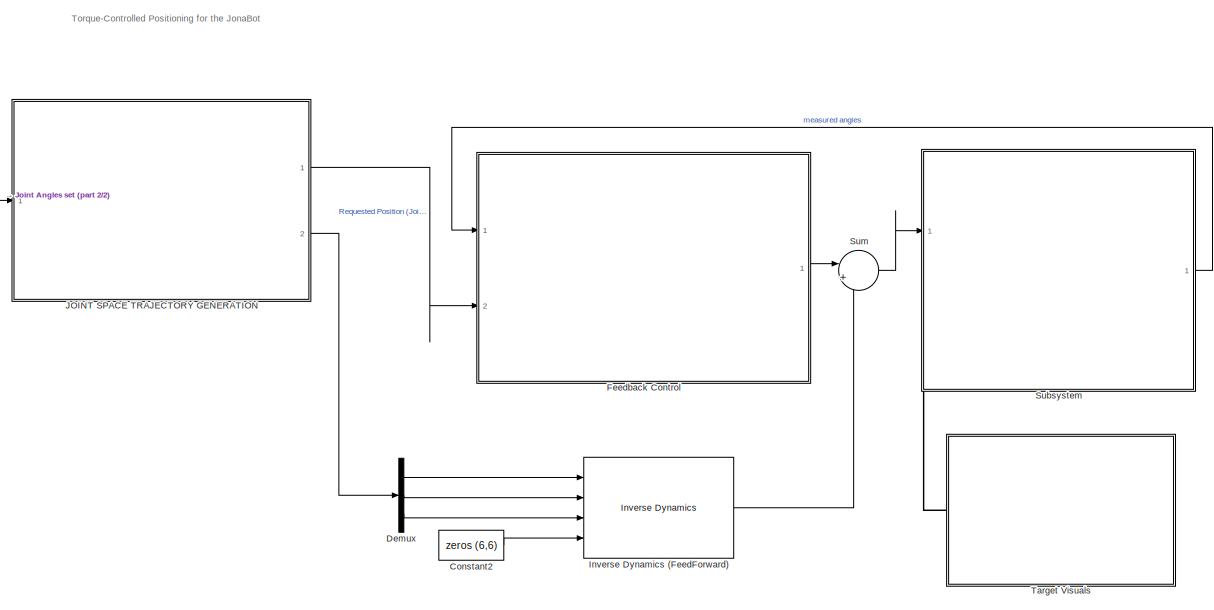
[diagram: root canvas - part 1/2, most of the canvas]
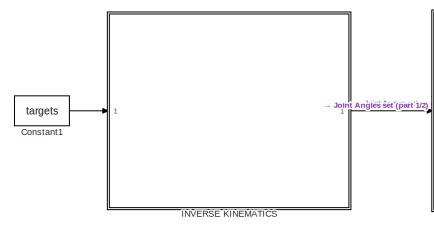
[diagram: root canvas - part 2/2, middle left region]
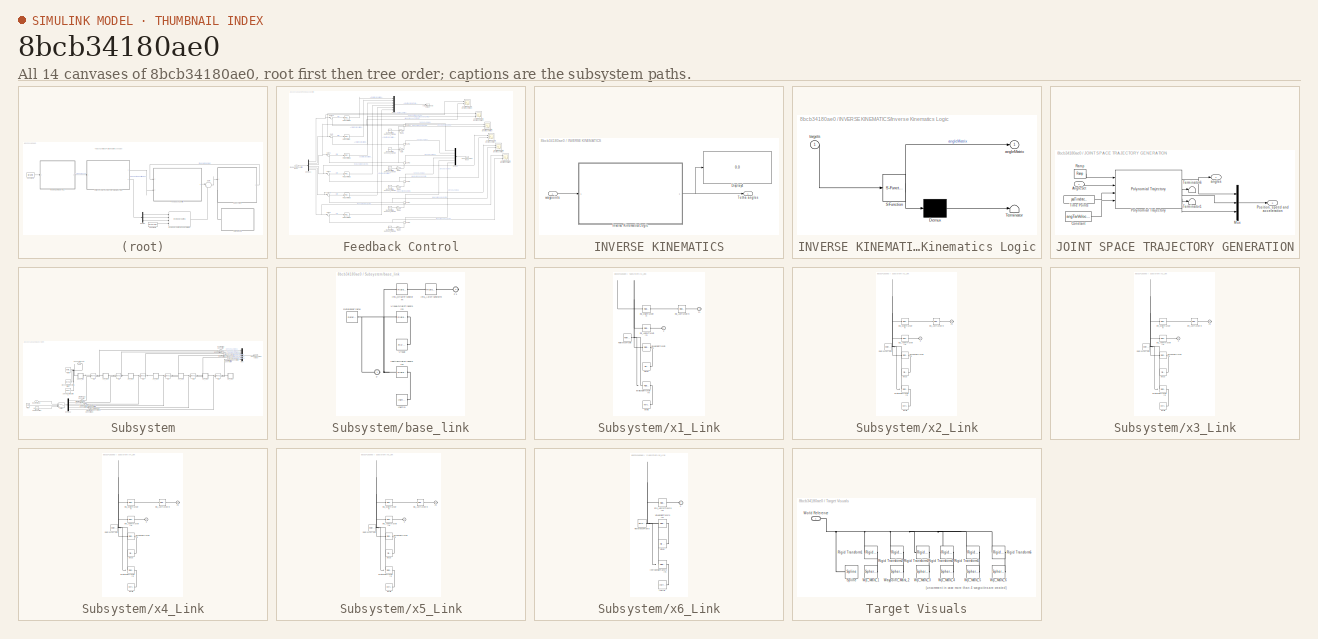
[diagram: thumbnail index - all 14 canvases of the model, root first then tree order]
MODEL slx_8bcb34180ae0
KIND model
CONFIG AbsTol = auto
CONFIG EnableMultiTasking = off
CONFIG FixedStep = auto
CONFIG MaxStep = auto
CONFIG MinStep = auto
CONFIG RelTol = 1e-3
CONFIG SampleTimeConstraint = Unconstrained
CONFIG SolverName = VariableStepAuto
CONFIG StartTime = 0.0
CONFIG StopTime = 10
BLOCK [Constant] Constant1
  Value = targets
BLOCK [Constant] Constant2
  Value = zeros (6,6)
BLOCK [Demux] Demux
  Outputs = 3
  Ports = [1, 3]
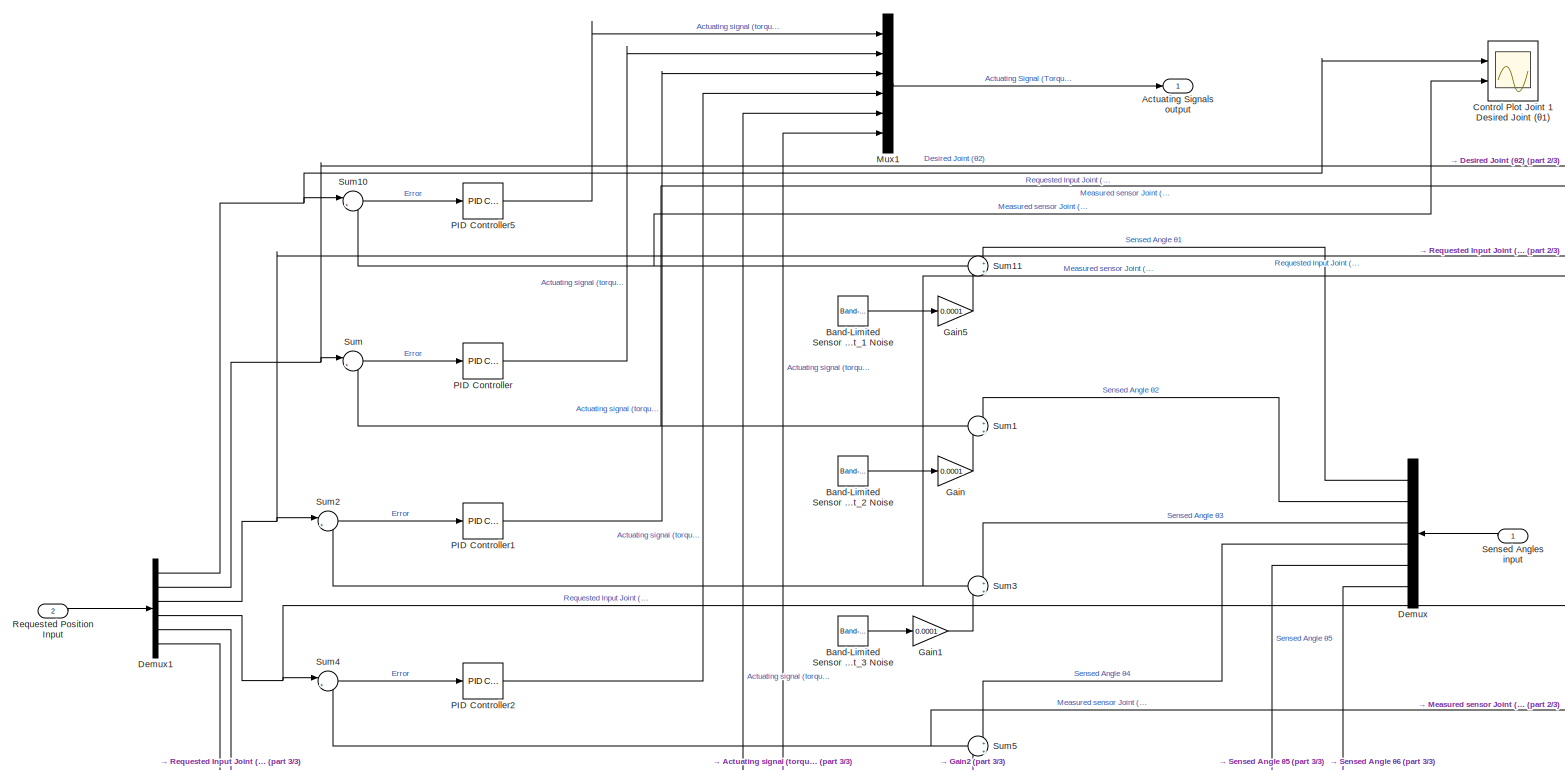
[diagram: Feedback Control - part 1/3, full width, middle band]
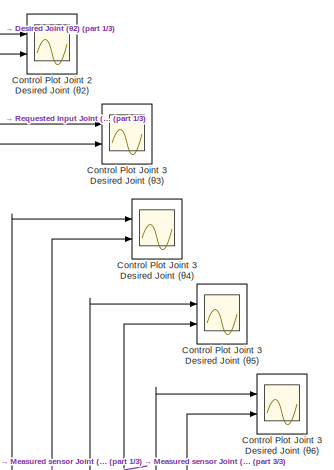
[diagram: Feedback Control - part 2/3, top right region]
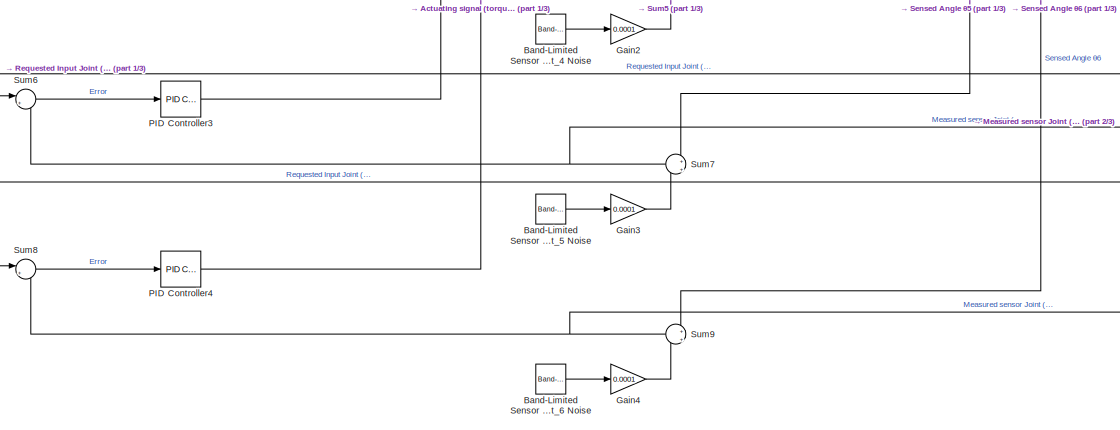
[diagram: Feedback Control - part 3/3, bottom center region]
BLOCK [SubSystem] Feedback Control
  Ports = [2, 1]
  RequestExecContextInheritance = off
BLOCK [Outport] Feedback Control/Actuating Signals output
BLOCK [Reference] Feedback Control/Band-Limited Sensor Joint_1 Noise  REF=simulink/Sources/Band-Limited
White Noise
  Ports = [0, 1]
  SourceBlock = simulink/Sources/Band-Limited\nWhite Noise
  SourceProductBaseCode = SL
  SourceType = Band-Limited White Noise.
BLOCK [Reference] Feedback Control/Band-Limited Sensor Joint_2 Noise  REF=simulink/Sources/Band-Limited
White Noise
  Ports = [0, 1]
  SourceBlock = simulink/Sources/Band-Limited\nWhite Noise
  SourceProductBaseCode = SL
  SourceType = Band-Limited White Noise.
BLOCK [Reference] Feedback Control/Band-Limited Sensor Joint_3 Noise  REF=simulink/Sources/Band-Limited
White Noise
  Ports = [0, 1]
  SourceBlock = simulink/Sources/Band-Limited\nWhite Noise
  SourceProductBaseCode = SL
  SourceType = Band-Limited White Noise.
BLOCK [Reference] Feedback Control/Band-Limited Sensor Joint_4 Noise  REF=simulink/Sources/Band-Limited
White Noise
  Ports = [0, 1]
  SourceBlock = simulink/Sources/Band-Limited\nWhite Noise
  SourceProductBaseCode = SL
  SourceType = Band-Limited White Noise.
BLOCK [Reference] Feedback Control/Band-Limited Sensor Joint_5 Noise  REF=simulink/Sources/Band-Limited
White Noise
  Commented = on
  Ports = [0, 1]
  SourceBlock = simulink/Sources/Band-Limited\nWhite Noise
  SourceProductBaseCode = SL
  SourceType = Band-Limited White Noise.
BLOCK [Reference] Feedback Control/Band-Limited Sensor Joint_6 Noise  REF=simulink/Sources/Band-Limited
White Noise
  Ports = [0, 1]
  SourceBlock = simulink/Sources/Band-Limited\nWhite Noise
  SourceProductBaseCode = SL
  SourceType = Band-Limited White Noise.
BLOCK [Scope] Feedback Control/Control Plot Joint 1 Desired Joint (θ1)
  Floating = off
  NumInputPorts = 2
  Ports = [2]
  ScopeSpecificationString = Simulink.scopes.TimeScopeBlockCfg('CurrentConfiguration', extmgr.ConfigurationSet(extmgr.Configuration('Core','General UI',true,'ShowMainToolbar',false,'ShowStatusbar',false),extmgr.Configuration('Core','Source UI',true),extmgr.Configuration('Sources','WiredSimulink',true,'DataLoggingVariableName','ScopeData1'),extmgr.Configuration('Visuals','Time Domain',true,'SerializedDisplays',{struct('MinYLim...<+1853ch>
BLOCK [Scope] Feedback Control/Control Plot Joint 2 Desired Joint (θ2)
  Floating = off
  NumInputPorts = 2
  Ports = [2]
  ScopeSpecificationString = Simulink.scopes.TimeScopeBlockCfg('CurrentConfiguration', extmgr.ConfigurationSet(extmgr.Configuration('Core','General UI',true,'ShowMainToolbar',false,'ShowStatusbar',false),extmgr.Configuration('Core','Source UI',true),extmgr.Configuration('Sources','WiredSimulink',true),extmgr.Configuration('Visuals','Time Domain',true,'SerializedDisplays',{struct('MinYLimReal','0.00000','MaxYLimReal','1.81013'...<+1829ch>
BLOCK [Scope] Feedback Control/Control Plot Joint 3 Desired Joint (θ3)
  Floating = off
  NumInputPorts = 2
  Ports = [2]
  ScopeSpecificationString = Simulink.scopes.TimeScopeBlockCfg('CurrentConfiguration', extmgr.ConfigurationSet(extmgr.Configuration('Core','General UI',true,'ShowMainToolbar',false,'ShowStatusbar',false),extmgr.Configuration('Core','Source UI',true),extmgr.Configuration('Sources','WiredSimulink',true,'DataLoggingVariableName','ScopeData2'),extmgr.Configuration('Visuals','Time Domain',true,'SerializedDisplays',{struct('MinYLim...<+1882ch>
BLOCK [Scope] Feedback Control/Control Plot Joint 3 Desired Joint (θ4)
  Floating = off
  NumInputPorts = 2
  Ports = [2]
  ScopeSpecificationString = Simulink.scopes.TimeScopeBlockCfg('CurrentConfiguration', extmgr.ConfigurationSet(extmgr.Configuration('Core','General UI',true,'ShowMainToolbar',false,'ShowStatusbar',false),extmgr.Configuration('Core','Source UI',true),extmgr.Configuration('Sources','WiredSimulink',true,'DataLoggingVariableName','ScopeData3'),extmgr.Configuration('Visuals','Time Domain',true,'SerializedDisplays',{struct('MinYLim...<+1882ch>
BLOCK [Scope] Feedback Control/Control Plot Joint 3 Desired Joint (θ5)
  Floating = off
  NumInputPorts = 2
  Ports = [2]
  ScopeSpecificationString = Simulink.scopes.TimeScopeBlockCfg('CurrentConfiguration', extmgr.ConfigurationSet(extmgr.Configuration('Core','General UI',true,'ShowMainToolbar',false,'ShowStatusbar',false),extmgr.Configuration('Core','Source UI',true),extmgr.Configuration('Sources','WiredSimulink',true,'DataLoggingVariableName','ScopeData4'),extmgr.Configuration('Visuals','Time Domain',true,'SerializedDisplays',{struct('MinYLim...<+1882ch>
BLOCK [Scope] Feedback Control/Control Plot Joint 3 Desired Joint (θ6)
  Floating = off
  NumInputPorts = 2
  Ports = [2]
  ScopeSpecificationString = Simulink.scopes.TimeScopeBlockCfg('CurrentConfiguration', extmgr.ConfigurationSet(extmgr.Configuration('Core','General UI',true,'ShowMainToolbar',false,'ShowStatusbar',false),extmgr.Configuration('Core','Source UI',true),extmgr.Configuration('Sources','WiredSimulink',true,'DataLoggingVariableName','ScopeData5'),extmgr.Configuration('Visuals','Time Domain',true,'SerializedDisplays',{struct('MinYLim...<+1905ch>
BLOCK [Demux] Feedback Control/Demux
  Outputs = 6
  Ports = [1, 6]
BLOCK [Demux] Feedback Control/Demux1
  Outputs = 6
  Ports = [1, 6]
BLOCK [Gain] Feedback Control/Gain
  Gain = 0.0001
BLOCK [Gain] Feedback Control/Gain1
  Gain = 0.0001
BLOCK [Gain] Feedback Control/Gain2
  Gain = 0.0001
BLOCK [Gain] Feedback Control/Gain3
  Commented = on
  Gain = 0.0001
BLOCK [Gain] Feedback Control/Gain4
  Gain = 0.0001
BLOCK [Gain] Feedback Control/Gain5
  Gain = 0.0001
BLOCK [Mux] Feedback Control/Mux1
  DisplayOption = bar
  Inputs = 6
  Ports = [6, 1]
BLOCK [Reference] Feedback Control/PID Controller  REF=slpidlib/PID Controller
  Ports = [1, 1]
  SourceBlock = slpidlib/PID Controller
  SourceProductBaseCode = SL
  SourceType = PID 1dof
BLOCK [Reference] Feedback Control/PID Controller1  REF=slpidlib/PID Controller
  Ports = [1, 1]
  SourceBlock = slpidlib/PID Controller
  SourceProductBaseCode = SL
  SourceType = PID 1dof
BLOCK [Reference] Feedback Control/PID Controller2  REF=slpidlib/PID Controller
  Ports = [1, 1]
  SourceBlock = slpidlib/PID Controller
  SourceProductBaseCode = SL
  SourceType = PID 1dof
BLOCK [Reference] Feedback Control/PID Controller3  REF=slpidlib/PID Controller
  Ports = [1, 1]
  SourceBlock = slpidlib/PID Controller
  SourceProductBaseCode = SL
  SourceType = PID 1dof
BLOCK [Reference] Feedback Control/PID Controller4  REF=slpidlib/PID Controller
  Ports = [1, 1]
  SourceBlock = slpidlib/PID Controller
  SourceProductBaseCode = SL
  SourceType = PID 1dof
BLOCK [Reference] Feedback Control/PID Controller5  REF=slpidlib/PID Controller
  Ports = [1, 1]
  SourceBlock = slpidlib/PID Controller
  SourceProductBaseCode = SL
  SourceType = PID 1dof
BLOCK [Inport] Feedback Control/Requested Position Input
  Port = 2
BLOCK [Inport] Feedback Control/Sensed Angles input
BLOCK [Sum] Feedback Control/Sum
  Inputs = |+-
  Ports = [2, 1]
BLOCK [Sum] Feedback Control/Sum1
  Inputs = +|+
  NameLocation = top
  Ports = [2, 1]
BLOCK [Sum] Feedback Control/Sum10
  Inputs = |+-
  Ports = [2, 1]
BLOCK [Sum] Feedback Control/Sum11
  Inputs = +|+
  NameLocation = top
  Ports = [2, 1]
BLOCK [Sum] Feedback Control/Sum2
  Inputs = |+-
  Ports = [2, 1]
BLOCK [Sum] Feedback Control/Sum3
  Inputs = +|+
  NameLocation = top
  Ports = [2, 1]
BLOCK [Sum] Feedback Control/Sum4
  Inputs = |+-
  Ports = [2, 1]
BLOCK [Sum] Feedback Control/Sum5
  Inputs = +|+
  NameLocation = top
  Ports = [2, 1]
BLOCK [Sum] Feedback Control/Sum6
  Inputs = |+-
  Ports = [2, 1]
BLOCK [Sum] Feedback Control/Sum7
  Inputs = +|+
  NameLocation = top
  Ports = [2, 1]
BLOCK [Sum] Feedback Control/Sum8
  Inputs = |+-
  Ports = [2, 1]
BLOCK [Sum] Feedback Control/Sum9
  Inputs = +|+
  NameLocation = top
  Ports = [2, 1]
BLOCK [SubSystem] INVERSE KINEMATICS
  Ports = [1, 1]
  Priority = 2
  RequestExecContextInheritance = off
BLOCK [Display] INVERSE KINEMATICS/Display4
  Decimation = 1
  Ports = [1]
BLOCK [SubSystem] INVERSE KINEMATICS/Inverse Kinematics Logic
  ErrorFcn = Stateflow.Translate.translate
  PermitHierarchicalResolution = ExplicitOnly
  Ports = [1, 1]
  RequestExecContextInheritance = off
  SFBlockType = Chart
  TreatAsAtomicUnit = on
BLOCK [Demux] INVERSE KINEMATICS/Inverse Kinematics Logic/ Demux 
  Outputs = 1
  Ports = [1, 1]
BLOCK [S-Function] INVERSE KINEMATICS/Inverse Kinematics Logic/ SFunction 
  EnableBusSupport = on
  FunctionName = sf_sfun
  PortCounts = [1 2]
  Ports = [1, 2]
  SFcnIsStateOwnerBlock = off
  SFunctionDeploymentMode = off
  Tag = Stateflow S-Function 3
BLOCK [Terminator] INVERSE KINEMATICS/Inverse Kinematics Logic/ Terminator 
BLOCK [Outport] INVERSE KINEMATICS/Inverse Kinematics Logic/angleMatrix
BLOCK [Inport] INVERSE KINEMATICS/Inverse Kinematics Logic/targets
BLOCK [Outport] INVERSE KINEMATICS/Tetha angles
BLOCK [Inport] INVERSE KINEMATICS/waypoints
BLOCK [Reference] Inverse Dynamics (FeedForward)  REF=robotmaniplib/Inverse Dynamics
  Ports = [4, 1]
  SourceBlock = robotmaniplib/Inverse Dynamics
  SourceProductBaseCode = RO
  SourceType = Inverse Dynamics
BLOCK [SubSystem] JOINT SPACE TRAJECTORY GENERATION
  Ports = [1, 2]
  RequestExecContextInheritance = off
BLOCK [Inport] JOINT SPACE TRAJECTORY GENERATION/AngleSet
BLOCK [Constant] JOINT SPACE TRAJECTORY GENERATION/Constant
  Value = angTarVelocity
BLOCK [Mux] JOINT SPACE TRAJECTORY GENERATION/Mux
  DisplayOption = bar
  Inputs = 3
  Ports = [3, 1]
BLOCK [Reference] JOINT SPACE TRAJECTORY GENERATION/Polynomial Trajectory  REF=robotcorelib/Polynomial Trajectory
  Ports = [4, 3]
  Priority = 1
  SourceBlock = robotcorelib/Polynomial Trajectory
  SourceProductBaseCode = NV,RO,RR,UV
  SourceType = robotics.slcore.internal.block.PolyTrajSys
BLOCK [Outport] JOINT SPACE TRAJECTORY GENERATION/Position, speed and acceleration
  Port = 2
BLOCK [Reference] JOINT SPACE TRAJECTORY GENERATION/Ramp  REF=simulink/Sources/Ramp
  Ports = [0, 1]
  SourceBlock = simulink/Sources/Ramp
  SourceProductBaseCode = SL
  SourceType = Ramp
BLOCK [Terminator] JOINT SPACE TRAJECTORY GENERATION/Terminator1
  Commented = on
BLOCK [Terminator] JOINT SPACE TRAJECTORY GENERATION/Terminator6
  Commented = on
BLOCK [Constant] JOINT SPACE TRAJECTORY GENERATION/Time Points
  Value = posTimeIntervals
BLOCK [Outport] JOINT SPACE TRAJECTORY GENERATION/angles
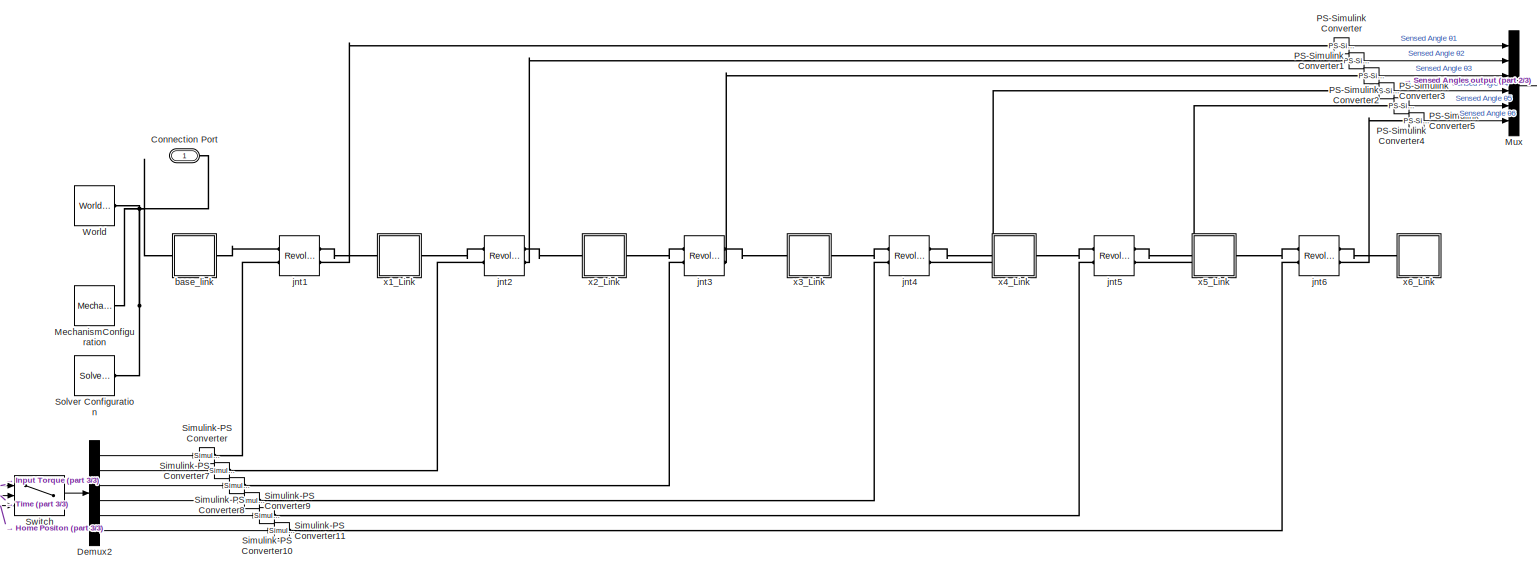
[diagram: Subsystem - part 1/3, most of the canvas]
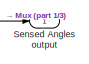
[diagram: Subsystem - part 2/3, top right region]
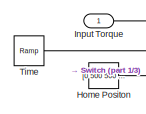
[diagram: Subsystem - part 3/3, bottom left region]
BLOCK [SubSystem] Subsystem
  Ports = [1, 1, 0, 0, 0, 1]
  RequestExecContextInheritance = off
BLOCK [PMIOPort] Subsystem/Connection Port
  Side = Left
BLOCK [Demux] Subsystem/Demux2
  Outputs = 6
  Ports = [1, 6]
BLOCK [Constant] Subsystem/Home Positon
  Value = [0 500 500 0 0 0]
BLOCK [Inport] Subsystem/Input Torque
BLOCK [Reference] Subsystem/MechanismConfiguration  REF=sm_lib/Utilities/Mechanism
Configuration
  Ports = [0, 0, 0, 0, 0, 0, 1]
  SourceBlock = sm_lib/Utilities/Mechanism\nConfiguration
  SourceProductBaseCode = MS
  SourceType = Mechanism\nConfiguration
BLOCK [Mux] Subsystem/Mux
  DisplayOption = bar
  Inputs = 6
  Ports = [6, 1]
BLOCK [Reference] Subsystem/PS-Simulink Converter  REF=nesl_utility/PS-Simulink
Converter
  Ports = [0, 1, 0, 0, 0, 1]
  SourceBlock = nesl_utility/PS-Simulink\nConverter
  SourceProductBaseCode = PW,SS
  SourceType = PS-Simulink\nConverter
BLOCK [Reference] Subsystem/PS-Simulink Converter1  REF=nesl_utility/PS-Simulink
Converter
  Ports = [0, 1, 0, 0, 0, 1]
  SourceBlock = nesl_utility/PS-Simulink\nConverter
  SourceProductBaseCode = PW,SS
  SourceType = PS-Simulink\nConverter
BLOCK [Reference] Subsystem/PS-Simulink Converter2  REF=nesl_utility/PS-Simulink
Converter
  Ports = [0, 1, 0, 0, 0, 1]
  SourceBlock = nesl_utility/PS-Simulink\nConverter
  SourceProductBaseCode = PW,SS
  SourceType = PS-Simulink\nConverter
BLOCK [Reference] Subsystem/PS-Simulink Converter3  REF=nesl_utility/PS-Simulink
Converter
  Ports = [0, 1, 0, 0, 0, 1]
  SourceBlock = nesl_utility/PS-Simulink\nConverter
  SourceProductBaseCode = PW,SS
  SourceType = PS-Simulink\nConverter
BLOCK [Reference] Subsystem/PS-Simulink Converter4  REF=nesl_utility/PS-Simulink
Converter
  Ports = [0, 1, 0, 0, 0, 1]
  SourceBlock = nesl_utility/PS-Simulink\nConverter
  SourceProductBaseCode = PW,SS
  SourceType = PS-Simulink\nConverter
BLOCK [Reference] Subsystem/PS-Simulink Converter5  REF=nesl_utility/PS-Simulink
Converter
  Ports = [0, 1, 0, 0, 0, 1]
  SourceBlock = nesl_utility/PS-Simulink\nConverter
  SourceProductBaseCode = PW,SS
  SourceType = PS-Simulink\nConverter
BLOCK [Outport] Subsystem/Sensed Angles output
BLOCK [Reference] Subsystem/Simulink-PS Converter  REF=nesl_utility/Simulink-PS
Converter
  Ports = [1, 0, 0, 0, 0, 0, 1]
  SourceBlock = nesl_utility/Simulink-PS\nConverter
  SourceProductBaseCode = PW,SS
  SourceType = Simulink-PS\nConverter
BLOCK [Reference] Subsystem/Simulink-PS Converter10  REF=nesl_utility/Simulink-PS
Converter
  Ports = [1, 0, 0, 0, 0, 0, 1]
  SourceBlock = nesl_utility/Simulink-PS\nConverter
  SourceProductBaseCode = PW,SS
  SourceType = Simulink-PS\nConverter
BLOCK [Reference] Subsystem/Simulink-PS Converter11  REF=nesl_utility/Simulink-PS
Converter
  Ports = [1, 0, 0, 0, 0, 0, 1]
  SourceBlock = nesl_utility/Simulink-PS\nConverter
  SourceProductBaseCode = PW,SS
  SourceType = Simulink-PS\nConverter
BLOCK [Reference] Subsystem/Simulink-PS Converter7  REF=nesl_utility/Simulink-PS
Converter
  Ports = [1, 0, 0, 0, 0, 0, 1]
  SourceBlock = nesl_utility/Simulink-PS\nConverter
  SourceProductBaseCode = PW,SS
  SourceType = Simulink-PS\nConverter
BLOCK [Reference] Subsystem/Simulink-PS Converter8  REF=nesl_utility/Simulink-PS
Converter
  Ports = [1, 0, 0, 0, 0, 0, 1]
  SourceBlock = nesl_utility/Simulink-PS\nConverter
  SourceProductBaseCode = PW,SS
  SourceType = Simulink-PS\nConverter
BLOCK [Reference] Subsystem/Simulink-PS Converter9  REF=nesl_utility/Simulink-PS
Converter
  Ports = [1, 0, 0, 0, 0, 0, 1]
  SourceBlock = nesl_utility/Simulink-PS\nConverter
  SourceProductBaseCode = PW,SS
  SourceType = Simulink-PS\nConverter
BLOCK [Reference] Subsystem/Solver Configuration  REF=nesl_utility/Solver
Configuration
  Ports = [0, 0, 0, 0, 0, 0, 1]
  SourceBlock = nesl_utility/Solver\nConfiguration
  SourceProductBaseCode = PW,SS
  SourceType = Solver\nConfiguration
BLOCK [Switch] Subsystem/Switch
  InputSameDT = off
  SaturateOnIntegerOverflow = off
  Threshold = 0.2
BLOCK [Reference] Subsystem/Time  REF=simulink/Sources/Ramp
  Ports = [0, 1]
  SourceBlock = simulink/Sources/Ramp
  SourceProductBaseCode = SL
  SourceType = Ramp
BLOCK [Reference] Subsystem/World  REF=sm_lib/Frames and
Transforms/World Frame
  Ports = [0, 0, 0, 0, 0, 0, 1]
  SourceBlock = sm_lib/Frames and\nTransforms/World Frame
  SourceProductBaseCode = MS
  SourceType = World Frame
BLOCK [SubSystem] Subsystem/base_link
  Ports = [0, 0, 0, 0, 0, 1, 1]
  RequestExecContextInheritance = off
BLOCK [PMIOPort] Subsystem/base_link/F
  Side = Left
BLOCK [PMIOPort] Subsystem/base_link/F1
  Port = 2
  Side = Right
BLOCK [Reference] Subsystem/base_link/Inertia  REF=sm_lib/Body Elements/Inertia
  Ports = [0, 0, 0, 0, 0, 0, 1]
  SourceBlock = sm_lib/Body Elements/Inertia
  SourceProductBaseCode = MS
  SourceType = Inertia
BLOCK [Reference] Subsystem/base_link/InertiaOriginTransform  REF=sm_lib/Frames and
Transforms/Rigid
Transform
  Ports = [0, 0, 0, 0, 0, 1, 1]
  SourceBlock = sm_lib/Frames and\nTransforms/Rigid\nTransform
  SourceProductBaseCode = MS
  SourceType = Rigid\nTransform
BLOCK [Reference] Subsystem/base_link/ReferenceFrame  REF=sm_lib/Frames and
Transforms/Reference
Frame
  Ports = [0, 0, 0, 0, 0, 0, 1]
  SourceBlock = sm_lib/Frames and\nTransforms/Reference\nFrame
  SourceProductBaseCode = MS
  SourceType = Reference\nFrame
BLOCK [Reference] Subsystem/base_link/Visual  REF=sm_lib/Body Elements/File Solid
  Ports = [0, 0, 0, 0, 0, 0, 1]
  SourceBlock = sm_lib/Body Elements/File Solid
  SourceProductBaseCode = MS
  SourceType = File Solid
BLOCK [Reference] Subsystem/base_link/VisualOriginTransform  REF=sm_lib/Frames and
Transforms/Rigid
Transform
  Ports = [0, 0, 0, 0, 0, 1, 1]
  SourceBlock = sm_lib/Frames and\nTransforms/Rigid\nTransform
  SourceProductBaseCode = MS
  SourceType = Rigid\nTransform
BLOCK [Reference] Subsystem/base_link/jnt1_AxisTransform  REF=sm_lib/Frames and
Transforms/Rigid
Transform
  Ports = [0, 0, 0, 0, 0, 1, 1]
  SourceBlock = sm_lib/Frames and\nTransforms/Rigid\nTransform
  SourceProductBaseCode = MS
  SourceType = Rigid\nTransform
BLOCK [Reference] Subsystem/base_link/jnt1_OriginTransform  REF=sm_lib/Frames and
Transforms/Rigid
Transform
  Ports = [0, 0, 0, 0, 0, 1, 1]
  SourceBlock = sm_lib/Frames and\nTransforms/Rigid\nTransform
  SourceProductBaseCode = MS
  SourceType = Rigid\nTransform
BLOCK [Reference] Subsystem/jnt1  REF=sm_lib/Joints/Revolute Joint
  Ports = [0, 0, 0, 0, 0, 2, 2]
  SourceBlock = sm_lib/Joints/Revolute Joint
  SourceProductBaseCode = MS
  SourceType = Revolute Joint
BLOCK [Reference] Subsystem/jnt2  REF=sm_lib/Joints/Revolute Joint
  Ports = [0, 0, 0, 0, 0, 2, 2]
  SourceBlock = sm_lib/Joints/Revolute Joint
  SourceProductBaseCode = MS
  SourceType = Revolute Joint
BLOCK [Reference] Subsystem/jnt3  REF=sm_lib/Joints/Revolute Joint
  Ports = [0, 0, 0, 0, 0, 2, 2]
  SourceBlock = sm_lib/Joints/Revolute Joint
  SourceProductBaseCode = MS
  SourceType = Revolute Joint
BLOCK [Reference] Subsystem/jnt4  REF=sm_lib/Joints/Revolute Joint
  Ports = [0, 0, 0, 0, 0, 2, 2]
  SourceBlock = sm_lib/Joints/Revolute Joint
  SourceProductBaseCode = MS
  SourceType = Revolute Joint
BLOCK [Reference] Subsystem/jnt5  REF=sm_lib/Joints/Revolute Joint
  Ports = [0, 0, 0, 0, 0, 2, 2]
  SourceBlock = sm_lib/Joints/Revolute Joint
  SourceProductBaseCode = MS
  SourceType = Revolute Joint
BLOCK [Reference] Subsystem/jnt6  REF=sm_lib/Joints/Revolute Joint
  Ports = [0, 0, 0, 0, 0, 2, 2]
  SourceBlock = sm_lib/Joints/Revolute Joint
  SourceProductBaseCode = MS
  SourceType = Revolute Joint
BLOCK [SubSystem] Subsystem/x1_Link
  Ports = [0, 0, 0, 0, 0, 1, 1]
  RequestExecContextInheritance = off
BLOCK [PMIOPort] Subsystem/x1_Link/F
  Side = Left
BLOCK [PMIOPort] Subsystem/x1_Link/F1
  Port = 2
  Side = Right
BLOCK [Reference] Subsystem/x1_Link/Inertia  REF=sm_lib/Body Elements/Inertia
  Ports = [0, 0, 0, 0, 0, 0, 1]
  SourceBlock = sm_lib/Body Elements/Inertia
  SourceProductBaseCode = MS
  SourceType = Inertia
BLOCK [Reference] Subsystem/x1_Link/InertiaOriginTransform  REF=sm_lib/Frames and
Transforms/Rigid
Transform
  Ports = [0, 0, 0, 0, 0, 1, 1]
  SourceBlock = sm_lib/Frames and\nTransforms/Rigid\nTransform
  SourceProductBaseCode = MS
  SourceType = Rigid\nTransform
BLOCK [Reference] Subsystem/x1_Link/ReferenceFrame  REF=sm_lib/Frames and
Transforms/Reference
Frame
  Ports = [0, 0, 0, 0, 0, 0, 1]
  SourceBlock = sm_lib/Frames and\nTransforms/Reference\nFrame
  SourceProductBaseCode = MS
  SourceType = Reference\nFrame
BLOCK [Reference] Subsystem/x1_Link/Visual  REF=sm_lib/Body Elements/File Solid
  Ports = [0, 0, 0, 0, 0, 0, 1]
  SourceBlock = sm_lib/Body Elements/File Solid
  SourceProductBaseCode = MS
  SourceType = File Solid
BLOCK [Reference] Subsystem/x1_Link/VisualOriginTransform  REF=sm_lib/Frames and
Transforms/Rigid
Transform
  Ports = [0, 0, 0, 0, 0, 1, 1]
  SourceBlock = sm_lib/Frames and\nTransforms/Rigid\nTransform
  SourceProductBaseCode = MS
  SourceType = Rigid\nTransform
BLOCK [Reference] Subsystem/x1_Link/jnt1_AxisInvTransform  REF=sm_lib/Frames and
Transforms/Rigid
Transform
  Ports = [0, 0, 0, 0, 0, 1, 1]
  SourceBlock = sm_lib/Frames and\nTransforms/Rigid\nTransform
  SourceProductBaseCode = MS
  SourceType = Rigid\nTransform
BLOCK [Reference] Subsystem/x1_Link/jnt2_AxisTransform  REF=sm_lib/Frames and
Transforms/Rigid
Transform
  Ports = [0, 0, 0, 0, 0, 1, 1]
  SourceBlock = sm_lib/Frames and\nTransforms/Rigid\nTransform
  SourceProductBaseCode = MS
  SourceType = Rigid\nTransform
BLOCK [Reference] Subsystem/x1_Link/jnt2_OriginTransform  REF=sm_lib/Frames and
Transforms/Rigid
Transform
  Ports = [0, 0, 0, 0, 0, 1, 1]
  SourceBlock = sm_lib/Frames and\nTransforms/Rigid\nTransform
  SourceProductBaseCode = MS
  SourceType = Rigid\nTransform
BLOCK [SubSystem] Subsystem/x2_Link
  Ports = [0, 0, 0, 0, 0, 1, 1]
  RequestExecContextInheritance = off
BLOCK [PMIOPort] Subsystem/x2_Link/F
  Side = Left
BLOCK [PMIOPort] Subsystem/x2_Link/F1
  Port = 2
  Side = Right
BLOCK [Reference] Subsystem/x2_Link/Inertia  REF=sm_lib/Body Elements/Inertia
  Ports = [0, 0, 0, 0, 0, 0, 1]
  SourceBlock = sm_lib/Body Elements/Inertia
  SourceProductBaseCode = MS
  SourceType = Inertia
BLOCK [Reference] Subsystem/x2_Link/InertiaOriginTransform  REF=sm_lib/Frames and
Transforms/Rigid
Transform
  Ports = [0, 0, 0, 0, 0, 1, 1]
  SourceBlock = sm_lib/Frames and\nTransforms/Rigid\nTransform
  SourceProductBaseCode = MS
  SourceType = Rigid\nTransform
BLOCK [Reference] Subsystem/x2_Link/ReferenceFrame  REF=sm_lib/Frames and
Transforms/Reference
Frame
  Ports = [0, 0, 0, 0, 0, 0, 1]
  SourceBlock = sm_lib/Frames and\nTransforms/Reference\nFrame
  SourceProductBaseCode = MS
  SourceType = Reference\nFrame
BLOCK [Reference] Subsystem/x2_Link/Visual  REF=sm_lib/Body Elements/File Solid
  Ports = [0, 0, 0, 0, 0, 0, 1]
  SourceBlock = sm_lib/Body Elements/File Solid
  SourceProductBaseCode = MS
  SourceType = File Solid
BLOCK [Reference] Subsystem/x2_Link/VisualOriginTransform  REF=sm_lib/Frames and
Transforms/Rigid
Transform
  Ports = [0, 0, 0, 0, 0, 1, 1]
  SourceBlock = sm_lib/Frames and\nTransforms/Rigid\nTransform
  SourceProductBaseCode = MS
  SourceType = Rigid\nTransform
BLOCK [Reference] Subsystem/x2_Link/jnt2_AxisInvTransform  REF=sm_lib/Frames and
Transforms/Rigid
Transform
  Ports = [0, 0, 0, 0, 0, 1, 1]
  SourceBlock = sm_lib/Frames and\nTransforms/Rigid\nTransform
  SourceProductBaseCode = MS
  SourceType = Rigid\nTransform
BLOCK [Reference] Subsystem/x2_Link/jnt3_AxisTransform  REF=sm_lib/Frames and
Transforms/Rigid
Transform
  Ports = [0, 0, 0, 0, 0, 1, 1]
  SourceBlock = sm_lib/Frames and\nTransforms/Rigid\nTransform
  SourceProductBaseCode = MS
  SourceType = Rigid\nTransform
BLOCK [Reference] Subsystem/x2_Link/jnt3_OriginTransform  REF=sm_lib/Frames and
Transforms/Rigid
Transform
  Ports = [0, 0, 0, 0, 0, 1, 1]
  SourceBlock = sm_lib/Frames and\nTransforms/Rigid\nTransform
  SourceProductBaseCode = MS
  SourceType = Rigid\nTransform
BLOCK [SubSystem] Subsystem/x3_Link
  Ports = [0, 0, 0, 0, 0, 1, 1]
  RequestExecContextInheritance = off
BLOCK [PMIOPort] Subsystem/x3_Link/F
  Side = Left
BLOCK [PMIOPort] Subsystem/x3_Link/F1
  Port = 2
  Side = Right
BLOCK [Reference] Subsystem/x3_Link/Inertia  REF=sm_lib/Body Elements/Inertia
  Ports = [0, 0, 0, 0, 0, 0, 1]
  SourceBlock = sm_lib/Body Elements/Inertia
  SourceProductBaseCode = MS
  SourceType = Inertia
BLOCK [Reference] Subsystem/x3_Link/InertiaOriginTransform  REF=sm_lib/Frames and
Transforms/Rigid
Transform
  Ports = [0, 0, 0, 0, 0, 1, 1]
  SourceBlock = sm_lib/Frames and\nTransforms/Rigid\nTransform
  SourceProductBaseCode = MS
  SourceType = Rigid\nTransform
BLOCK [Reference] Subsystem/x3_Link/ReferenceFrame  REF=sm_lib/Frames and
Transforms/Reference
Frame
  Ports = [0, 0, 0, 0, 0, 0, 1]
  SourceBlock = sm_lib/Frames and\nTransforms/Reference\nFrame
  SourceProductBaseCode = MS
  SourceType = Reference\nFrame
BLOCK [Reference] Subsystem/x3_Link/Visual  REF=sm_lib/Body Elements/File Solid
  Ports = [0, 0, 0, 0, 0, 0, 1]
  SourceBlock = sm_lib/Body Elements/File Solid
  SourceProductBaseCode = MS
  SourceType = File Solid
BLOCK [Reference] Subsystem/x3_Link/VisualOriginTransform  REF=sm_lib/Frames and
Transforms/Rigid
Transform
  Ports = [0, 0, 0, 0, 0, 1, 1]
  SourceBlock = sm_lib/Frames and\nTransforms/Rigid\nTransform
  SourceProductBaseCode = MS
  SourceType = Rigid\nTransform
BLOCK [Reference] Subsystem/x3_Link/jnt3_AxisInvTransform  REF=sm_lib/Frames and
Transforms/Rigid
Transform
  Ports = [0, 0, 0, 0, 0, 1, 1]
  SourceBlock = sm_lib/Frames and\nTransforms/Rigid\nTransform
  SourceProductBaseCode = MS
  SourceType = Rigid\nTransform
BLOCK [Reference] Subsystem/x3_Link/jnt4_AxisTransform  REF=sm_lib/Frames and
Transforms/Rigid
Transform
  Ports = [0, 0, 0, 0, 0, 1, 1]
  SourceBlock = sm_lib/Frames and\nTransforms/Rigid\nTransform
  SourceProductBaseCode = MS
  SourceType = Rigid\nTransform
BLOCK [Reference] Subsystem/x3_Link/jnt4_OriginTransform  REF=sm_lib/Frames and
Transforms/Rigid
Transform
  Ports = [0, 0, 0, 0, 0, 1, 1]
  SourceBlock = sm_lib/Frames and\nTransforms/Rigid\nTransform
  SourceProductBaseCode = MS
  SourceType = Rigid\nTransform
BLOCK [SubSystem] Subsystem/x4_Link
  Ports = [0, 0, 0, 0, 0, 1, 1]
  RequestExecContextInheritance = off
BLOCK [PMIOPort] Subsystem/x4_Link/F
  Side = Left
BLOCK [PMIOPort] Subsystem/x4_Link/F1
  Port = 2
  Side = Right
BLOCK [Reference] Subsystem/x4_Link/Inertia  REF=sm_lib/Body Elements/Inertia
  Ports = [0, 0, 0, 0, 0, 0, 1]
  SourceBlock = sm_lib/Body Elements/Inertia
  SourceProductBaseCode = MS
  SourceType = Inertia
BLOCK [Reference] Subsystem/x4_Link/InertiaOriginTransform  REF=sm_lib/Frames and
Transforms/Rigid
Transform
  Ports = [0, 0, 0, 0, 0, 1, 1]
  SourceBlock = sm_lib/Frames and\nTransforms/Rigid\nTransform
  SourceProductBaseCode = MS
  SourceType = Rigid\nTransform
BLOCK [Reference] Subsystem/x4_Link/ReferenceFrame  REF=sm_lib/Frames and
Transforms/Reference
Frame
  Ports = [0, 0, 0, 0, 0, 0, 1]
  SourceBlock = sm_lib/Frames and\nTransforms/Reference\nFrame
  SourceProductBaseCode = MS
  SourceType = Reference\nFrame
BLOCK [Reference] Subsystem/x4_Link/Visual  REF=sm_lib/Body Elements/File Solid
  Ports = [0, 0, 0, 0, 0, 0, 1]
  SourceBlock = sm_lib/Body Elements/File Solid
  SourceProductBaseCode = MS
  SourceType = File Solid
BLOCK [Reference] Subsystem/x4_Link/VisualOriginTransform  REF=sm_lib/Frames and
Transforms/Rigid
Transform
  Ports = [0, 0, 0, 0, 0, 1, 1]
  SourceBlock = sm_lib/Frames and\nTransforms/Rigid\nTransform
  SourceProductBaseCode = MS
  SourceType = Rigid\nTransform
BLOCK [Reference] Subsystem/x4_Link/jnt4_AxisInvTransform  REF=sm_lib/Frames and
Transforms/Rigid
Transform
  Ports = [0, 0, 0, 0, 0, 1, 1]
  SourceBlock = sm_lib/Frames and\nTransforms/Rigid\nTransform
  SourceProductBaseCode = MS
  SourceType = Rigid\nTransform
BLOCK [Reference] Subsystem/x4_Link/jnt5_AxisTransform  REF=sm_lib/Frames and
Transforms/Rigid
Transform
  Ports = [0, 0, 0, 0, 0, 1, 1]
  SourceBlock = sm_lib/Frames and\nTransforms/Rigid\nTransform
  SourceProductBaseCode = MS
  SourceType = Rigid\nTransform
BLOCK [Reference] Subsystem/x4_Link/jnt5_OriginTransform  REF=sm_lib/Frames and
Transforms/Rigid
Transform
  Ports = [0, 0, 0, 0, 0, 1, 1]
  SourceBlock = sm_lib/Frames and\nTransforms/Rigid\nTransform
  SourceProductBaseCode = MS
  SourceType = Rigid\nTransform
BLOCK [SubSystem] Subsystem/x5_Link
  Ports = [0, 0, 0, 0, 0, 1, 1]
  RequestExecContextInheritance = off
BLOCK [PMIOPort] Subsystem/x5_Link/F
  Side = Left
BLOCK [PMIOPort] Subsystem/x5_Link/F1
  Port = 2
  Side = Right
BLOCK [Reference] Subsystem/x5_Link/Inertia  REF=sm_lib/Body Elements/Inertia
  Ports = [0, 0, 0, 0, 0, 0, 1]
  SourceBlock = sm_lib/Body Elements/Inertia
  SourceProductBaseCode = MS
  SourceType = Inertia
BLOCK [Reference] Subsystem/x5_Link/InertiaOriginTransform  REF=sm_lib/Frames and
Transforms/Rigid
Transform
  Ports = [0, 0, 0, 0, 0, 1, 1]
  SourceBlock = sm_lib/Frames and\nTransforms/Rigid\nTransform
  SourceProductBaseCode = MS
  SourceType = Rigid\nTransform
BLOCK [Reference] Subsystem/x5_Link/ReferenceFrame  REF=sm_lib/Frames and
Transforms/Reference
Frame
  Ports = [0, 0, 0, 0, 0, 0, 1]
  SourceBlock = sm_lib/Frames and\nTransforms/Reference\nFrame
  SourceProductBaseCode = MS
  SourceType = Reference\nFrame
BLOCK [Reference] Subsystem/x5_Link/Visual  REF=sm_lib/Body Elements/File Solid
  Ports = [0, 0, 0, 0, 0, 0, 1]
  SourceBlock = sm_lib/Body Elements/File Solid
  SourceProductBaseCode = MS
  SourceType = File Solid
BLOCK [Reference] Subsystem/x5_Link/VisualOriginTransform  REF=sm_lib/Frames and
Transforms/Rigid
Transform
  Ports = [0, 0, 0, 0, 0, 1, 1]
  SourceBlock = sm_lib/Frames and\nTransforms/Rigid\nTransform
  SourceProductBaseCode = MS
  SourceType = Rigid\nTransform
BLOCK [Reference] Subsystem/x5_Link/jnt5_AxisInvTransform  REF=sm_lib/Frames and
Transforms/Rigid
Transform
  Ports = [0, 0, 0, 0, 0, 1, 1]
  SourceBlock = sm_lib/Frames and\nTransforms/Rigid\nTransform
  SourceProductBaseCode = MS
  SourceType = Rigid\nTransform
BLOCK [Reference] Subsystem/x5_Link/jnt6_AxisTransform  REF=sm_lib/Frames and
Transforms/Rigid
Transform
  Ports = [0, 0, 0, 0, 0, 1, 1]
  SourceBlock = sm_lib/Frames and\nTransforms/Rigid\nTransform
  SourceProductBaseCode = MS
  SourceType = Rigid\nTransform
BLOCK [Reference] Subsystem/x5_Link/jnt6_OriginTransform  REF=sm_lib/Frames and
Transforms/Rigid
Transform
  Ports = [0, 0, 0, 0, 0, 1, 1]
  SourceBlock = sm_lib/Frames and\nTransforms/Rigid\nTransform
  SourceProductBaseCode = MS
  SourceType = Rigid\nTransform
BLOCK [SubSystem] Subsystem/x6_Link
  Ports = [0, 0, 0, 0, 0, 1]
  RequestExecContextInheritance = off
BLOCK [PMIOPort] Subsystem/x6_Link/F
  Side = Left
BLOCK [Reference] Subsystem/x6_Link/Inertia  REF=sm_lib/Body Elements/Inertia
  Ports = [0, 0, 0, 0, 0, 0, 1]
  SourceBlock = sm_lib/Body Elements/Inertia
  SourceProductBaseCode = MS
  SourceType = Inertia
BLOCK [Reference] Subsystem/x6_Link/InertiaOriginTransform  REF=sm_lib/Frames and
Transforms/Rigid
Transform
  Ports = [0, 0, 0, 0, 0, 1, 1]
  SourceBlock = sm_lib/Frames and\nTransforms/Rigid\nTransform
  SourceProductBaseCode = MS
  SourceType = Rigid\nTransform
BLOCK [Reference] Subsystem/x6_Link/ReferenceFrame  REF=sm_lib/Frames and
Transforms/Reference
Frame
  Ports = [0, 0, 0, 0, 0, 0, 1]
  SourceBlock = sm_lib/Frames and\nTransforms/Reference\nFrame
  SourceProductBaseCode = MS
  SourceType = Reference\nFrame
BLOCK [Reference] Subsystem/x6_Link/Visual  REF=sm_lib/Body Elements/File Solid
  Ports = [0, 0, 0, 0, 0, 0, 1]
  SourceBlock = sm_lib/Body Elements/File Solid
  SourceProductBaseCode = MS
  SourceType = File Solid
BLOCK [Reference] Subsystem/x6_Link/VisualOriginTransform  REF=sm_lib/Frames and
Transforms/Rigid
Transform
  Ports = [0, 0, 0, 0, 0, 1, 1]
  SourceBlock = sm_lib/Frames and\nTransforms/Rigid\nTransform
  SourceProductBaseCode = MS
  SourceType = Rigid\nTransform
BLOCK [Reference] Subsystem/x6_Link/jnt6_AxisInvTransform  REF=sm_lib/Frames and
Transforms/Rigid
Transform
  Ports = [0, 0, 0, 0, 0, 1, 1]
  SourceBlock = sm_lib/Frames and\nTransforms/Rigid\nTransform
  SourceProductBaseCode = MS
  SourceType = Rigid\nTransform
BLOCK [Sum] Sum
  Inputs = |++
  Ports = [2, 1]
BLOCK [SubSystem] Target Visuals
  Ports = [0, 0, 0, 0, 0, 1]
  RequestExecContextInheritance = off
BLOCK [Reference] Target Visuals/Rigid Transform1  REF=sm_lib/Frames and
Transforms/Rigid
Transform
  Ports = [0, 0, 0, 0, 0, 1, 1]
  SourceBlock = sm_lib/Frames and\nTransforms/Rigid\nTransform
  SourceProductBaseCode = MS
  SourceType = Rigid\nTransform
BLOCK [Reference] Target Visuals/Rigid Transform2  REF=sm_lib/Frames and
Transforms/Rigid
Transform
  Ports = [0, 0, 0, 0, 0, 1, 1]
  SourceBlock = sm_lib/Frames and\nTransforms/Rigid\nTransform
  SourceProductBaseCode = MS
  SourceType = Rigid\nTransform
BLOCK [Reference] Target Visuals/Rigid Transform3  REF=sm_lib/Frames and
Transforms/Rigid
Transform
  Commented = on
  Ports = [0, 0, 0, 0, 0, 1, 1]
  SourceBlock = sm_lib/Frames and\nTransforms/Rigid\nTransform
  SourceProductBaseCode = MS
  SourceType = Rigid\nTransform
BLOCK [Reference] Target Visuals/Rigid Transform4  REF=sm_lib/Frames and
Transforms/Rigid
Transform
  Commented = on
  Ports = [0, 0, 0, 0, 0, 1, 1]
  SourceBlock = sm_lib/Frames and\nTransforms/Rigid\nTransform
  SourceProductBaseCode = MS
  SourceType = Rigid\nTransform
BLOCK [Reference] Target Visuals/Rigid Transform5  REF=sm_lib/Frames and
Transforms/Rigid
Transform
  Commented = on
  Ports = [0, 0, 0, 0, 0, 1, 1]
  SourceBlock = sm_lib/Frames and\nTransforms/Rigid\nTransform
  SourceProductBaseCode = MS
  SourceType = Rigid\nTransform
BLOCK [Reference] Target Visuals/Rigid Transform6  REF=sm_lib/Frames and
Transforms/Rigid
Transform
  Commented = on
  Ports = [0, 0, 0, 0, 0, 1, 1]
  SourceBlock = sm_lib/Frames and\nTransforms/Rigid\nTransform
  SourceProductBaseCode = MS
  SourceType = Rigid\nTransform
BLOCK [Reference] Target Visuals/Spline  REF=sm_lib/Curves and Surfaces/Spline
  Commented = on
  Ports = [0, 0, 0, 0, 0, 1, 1]
  SourceBlock = sm_lib/Curves and Surfaces/Spline
  SourceProductBaseCode = MS
  SourceType = Spline
BLOCK [Reference] Target Visuals/Waypoint_Mark_2  REF=sm_lib/Body Elements/Spherical Solid
  Ports = [0, 0, 0, 0, 0, 0, 1]
  SourceBlock = sm_lib/Body Elements/Spherical Solid
  SourceProductBaseCode = MS
  SourceType = Spherical Solid
BLOCK [PMIOPort] Target Visuals/World Reference
  Side = Left
BLOCK [Reference] Target Visuals/Wp_Mark_1  REF=sm_lib/Body Elements/Spherical Solid
  Ports = [0, 0, 0, 0, 0, 0, 1]
  SourceBlock = sm_lib/Body Elements/Spherical Solid
  SourceProductBaseCode = MS
  SourceType = Spherical Solid
BLOCK [Reference] Target Visuals/Wp_Mark_3  REF=sm_lib/Body Elements/Spherical Solid
  Commented = on
  Ports = [0, 0, 0, 0, 0, 0, 1]
  SourceBlock = sm_lib/Body Elements/Spherical Solid
  SourceProductBaseCode = MS
  SourceType = Spherical Solid
BLOCK [Reference] Target Visuals/Wp_Mark_4  REF=sm_lib/Body Elements/Spherical Solid
  Commented = on
  Ports = [0, 0, 0, 0, 0, 0, 1]
  SourceBlock = sm_lib/Body Elements/Spherical Solid
  SourceProductBaseCode = MS
  SourceType = Spherical Solid
BLOCK [Reference] Target Visuals/Wp_Mark_5  REF=sm_lib/Body Elements/Spherical Solid
  Commented = on
  Ports = [0, 0, 0, 0, 0, 0, 1]
  SourceBlock = sm_lib/Body Elements/Spherical Solid
  SourceProductBaseCode = MS
  SourceType = Spherical Solid
BLOCK [Reference] Target Visuals/Wp_Mark_6  REF=sm_lib/Body Elements/Spherical Solid
  Commented = on
  Ports = [0, 0, 0, 0, 0, 0, 1]
  SourceBlock = sm_lib/Body Elements/Spherical Solid
  SourceProductBaseCode = MS
  SourceType = Spherical Solid
ANNOTATION (root): Torque-Controlled Positioning for the JonaBot
ANNOTATION Target Visuals: (uncomment in case more than 4 waypoitns are created)
LINE Constant1:1 -> INVERSE KINEMATICS:1
LINE Constant2:1 -> Inverse Dynamics (FeedForward):4
LINE Demux:1 -> Inverse Dynamics (FeedForward):1
LINE Demux:2 -> Inverse Dynamics (FeedForward):2
LINE Demux:3 -> Inverse Dynamics (FeedForward):3
LINE Feedback Control/Band-Limited Sensor Joint_1 Noise:1 -> Feedback Control/Gain5:1
LINE Feedback Control/Band-Limited Sensor Joint_2 Noise:1 -> Feedback Control/Gain:1
LINE Feedback Control/Band-Limited Sensor Joint_3 Noise:1 -> Feedback Control/Gain1:1
LINE Feedback Control/Band-Limited Sensor Joint_4 Noise:1 -> Feedback Control/Gain2:1
LINE Feedback Control/Band-Limited Sensor Joint_5 Noise:1 -> Feedback Control/Gain3:1
LINE Feedback Control/Band-Limited Sensor Joint_6 Noise:1 -> Feedback Control/Gain4:1
NET Feedback Control/Demux1:1 -> Feedback Control/Control Plot Joint 1 Desired Joint (θ1):1, Feedback Control/Sum10:1
NET Feedback Control/Demux1:2 -> Feedback Control/Control Plot Joint 2 Desired Joint (θ2):1, Feedback Control/Sum:1
NET Feedback Control/Demux1:3 -> Feedback Control/Control Plot Joint 3 Desired Joint (θ3):1, Feedback Control/Sum2:1
NET Feedback Control/Demux1:4 -> Feedback Control/Control Plot Joint 3 Desired Joint (θ4):1, Feedback Control/Sum4:1
NET Feedback Control/Demux1:5 -> Feedback Control/Control Plot Joint 3 Desired Joint (θ5):1, Feedback Control/Sum6:1
NET Feedback Control/Demux1:6 -> Feedback Control/Control Plot Joint 3 Desired Joint (θ6):1, Feedback Control/Sum8:1
LINE Feedback Control/Demux:1 -> Feedback Control/Sum11:1
LINE Feedback Control/Demux:2 -> Feedback Control/Sum1:1
LINE Feedback Control/Demux:3 -> Feedback Control/Sum3:1
LINE Feedback Control/Demux:4 -> Feedback Control/Sum5:1
LINE Feedback Control/Demux:5 -> Feedback Control/Sum7:1
LINE Feedback Control/Demux:6 -> Feedback Control/Sum9:1
LINE Feedback Control/Gain1:1 -> Feedback Control/Sum3:2
LINE Feedback Control/Gain2:1 -> Feedback Control/Sum5:2
LINE Feedback Control/Gain3:1 -> Feedback Control/Sum7:2
LINE Feedback Control/Gain4:1 -> Feedback Control/Sum9:2
LINE Feedback Control/Gain5:1 -> Feedback Control/Sum11:2
LINE Feedback Control/Gain:1 -> Feedback Control/Sum1:2
LINE Feedback Control/Mux1:1 -> Feedback Control/Actuating Signals output:1
LINE Feedback Control/PID Controller1:1 -> Feedback Control/Mux1:3
LINE Feedback Control/PID Controller2:1 -> Feedback Control/Mux1:4
LINE Feedback Control/PID Controller3:1 -> Feedback Control/Mux1:5
LINE Feedback Control/PID Controller4:1 -> Feedback Control/Mux1:6
LINE Feedback Control/PID Controller5:1 -> Feedback Control/Mux1:1
LINE Feedback Control/PID Controller:1 -> Feedback Control/Mux1:2
LINE Feedback Control/Requested Position Input:1 -> Feedback Control/Demux1:1
LINE Feedback Control/Sensed Angles input:1 -> Feedback Control/Demux:1
LINE Feedback Control/Sum10:1 -> Feedback Control/PID Controller5:1
NET Feedback Control/Sum11:1 -> Feedback Control/Control Plot Joint 1 Desired Joint (θ1):2, Feedback Control/Sum10:2
NET Feedback Control/Sum1:1 -> Feedback Control/Control Plot Joint 2 Desired Joint (θ2):2, Feedback Control/Sum:2
LINE Feedback Control/Sum2:1 -> Feedback Control/PID Controller1:1
NET Feedback Control/Sum3:1 -> Feedback Control/Control Plot Joint 3 Desired Joint (θ3):2, Feedback Control/Sum2:2
LINE Feedback Control/Sum4:1 -> Feedback Control/PID Controller2:1
NET Feedback Control/Sum5:1 -> Feedback Control/Control Plot Joint 3 Desired Joint (θ4):2, Feedback Control/Sum4:2
LINE Feedback Control/Sum6:1 -> Feedback Control/PID Controller3:1
NET Feedback Control/Sum7:1 -> Feedback Control/Control Plot Joint 3 Desired Joint (θ5):2, Feedback Control/Sum6:2
LINE Feedback Control/Sum8:1 -> Feedback Control/PID Controller4:1
NET Feedback Control/Sum9:1 -> Feedback Control/Control Plot Joint 3 Desired Joint (θ6):2, Feedback Control/Sum8:2
LINE Feedback Control/Sum:1 -> Feedback Control/PID Controller:1
LINE Feedback Control:1 -> Sum:1
NET INVERSE KINEMATICS/Inverse Kinematics Logic:1 -> INVERSE KINEMATICS/Display4:1, INVERSE KINEMATICS/Tetha angles:1
LINE INVERSE KINEMATICS/waypoints:1 -> INVERSE KINEMATICS/Inverse Kinematics Logic:1
LINE INVERSE KINEMATICS:1 -> JOINT SPACE TRAJECTORY GENERATION:1
LINE Inverse Dynamics (FeedForward):1 -> Sum:2
LINE JOINT SPACE TRAJECTORY GENERATION/AngleSet:1 -> JOINT SPACE TRAJECTORY GENERATION/Polynomial Trajectory:2
LINE JOINT SPACE TRAJECTORY GENERATION/Constant:1 -> JOINT SPACE TRAJECTORY GENERATION/Polynomial Trajectory:4
LINE JOINT SPACE TRAJECTORY GENERATION/Mux:1 -> JOINT SPACE TRAJECTORY GENERATION/Position, speed and acceleration:1
NET JOINT SPACE TRAJECTORY GENERATION/Polynomial Trajectory:1 -> JOINT SPACE TRAJECTORY GENERATION/Mux:1, JOINT SPACE TRAJECTORY GENERATION/angles:1
NET JOINT SPACE TRAJECTORY GENERATION/Polynomial Trajectory:2 -> JOINT SPACE TRAJECTORY GENERATION/Mux:2, JOINT SPACE TRAJECTORY GENERATION/Terminator6:1
NET JOINT SPACE TRAJECTORY GENERATION/Polynomial Trajectory:3 -> JOINT SPACE TRAJECTORY GENERATION/Mux:3, JOINT SPACE TRAJECTORY GENERATION/Terminator1:1
LINE JOINT SPACE TRAJECTORY GENERATION/Ramp:1 -> JOINT SPACE TRAJECTORY GENERATION/Polynomial Trajectory:1
LINE JOINT SPACE TRAJECTORY GENERATION/Time Points:1 -> JOINT SPACE TRAJECTORY GENERATION/Polynomial Trajectory:3
LINE JOINT SPACE TRAJECTORY GENERATION:1 -> Feedback Control:2
LINE JOINT SPACE TRAJECTORY GENERATION:2 -> Demux:1
LINE Subsystem/Demux2:1 -> Subsystem/Simulink-PS Converter:1
LINE Subsystem/Demux2:2 -> Subsystem/Simulink-PS Converter7:1
LINE Subsystem/Demux2:3 -> Subsystem/Simulink-PS Converter8:1
LINE Subsystem/Demux2:4 -> Subsystem/Simulink-PS Converter9:1
LINE Subsystem/Demux2:5 -> Subsystem/Simulink-PS Converter10:1
LINE Subsystem/Demux2:6 -> Subsystem/Simulink-PS Converter11:1
LINE Subsystem/Home Positon:1 -> Subsystem/Switch:3
LINE Subsystem/Input Torque:1 -> Subsystem/Switch:1
LINE Subsystem/Mux:1 -> Subsystem/Sensed Angles output:1
LINE Subsystem/PS-Simulink Converter1:1 -> Subsystem/Mux:2
LINE Subsystem/PS-Simulink Converter2:1 -> Subsystem/Mux:3
LINE Subsystem/PS-Simulink Converter3:1 -> Subsystem/Mux:4
LINE Subsystem/PS-Simulink Converter4:1 -> Subsystem/Mux:5
LINE Subsystem/PS-Simulink Converter5:1 -> Subsystem/Mux:6
LINE Subsystem/PS-Simulink Converter:1 -> Subsystem/Mux:1
LINE Subsystem/Switch:1 -> Subsystem/Demux2:1
LINE Subsystem/Time:1 -> Subsystem/Switch:2
LINE Subsystem:1 -> Feedback Control:1
LINE Sum:1 -> Subsystem:1
PNET net1: Subsystem/Connection Port:RConn1 -- Subsystem/MechanismConfiguration:RConn1 -- Subsystem/Solver Configuration:RConn1 -- Subsystem/World:RConn1 -- Subsystem/base_link:LConn1
PLINE Subsystem/PS-Simulink Converter1:LConn1 -- Subsystem/jnt2:RConn2
PLINE Subsystem/PS-Simulink Converter2:LConn1 -- Subsystem/jnt3:RConn2
PLINE Subsystem/PS-Simulink Converter3:LConn1 -- Subsystem/jnt4:RConn2
PLINE Subsystem/PS-Simulink Converter4:LConn1 -- Subsystem/jnt5:RConn2
PLINE Subsystem/PS-Simulink Converter5:LConn1 -- Subsystem/jnt6:RConn2
PLINE Subsystem/PS-Simulink Converter:LConn1 -- Subsystem/jnt1:RConn2
PLINE Subsystem/Simulink-PS Converter10:RConn1 -- Subsystem/jnt5:LConn2
PLINE Subsystem/Simulink-PS Converter11:RConn1 -- Subsystem/jnt6:LConn2
PLINE Subsystem/Simulink-PS Converter7:RConn1 -- Subsystem/jnt2:LConn2
PLINE Subsystem/Simulink-PS Converter8:RConn1 -- Subsystem/jnt3:LConn2
PLINE Subsystem/Simulink-PS Converter9:RConn1 -- Subsystem/jnt4:LConn2
PLINE Subsystem/Simulink-PS Converter:RConn1 -- Subsystem/jnt1:LConn2
PLINE Subsystem/base_link/F1:RConn1 -- Subsystem/base_link/jnt1_AxisTransform:RConn1
PNET net2: Subsystem/base_link/F:RConn1 -- Subsystem/base_link/InertiaOriginTransform:LConn1 -- Subsystem/base_link/ReferenceFrame:RConn1 -- Subsystem/base_link/VisualOriginTransform:LConn1 -- Subsystem/base_link/jnt1_OriginTransform:LConn1
PLINE Subsystem/base_link/Inertia:RConn1 -- Subsystem/base_link/InertiaOriginTransform:RConn1
PLINE Subsystem/base_link/Visual:RConn1 -- Subsystem/base_link/VisualOriginTransform:RConn1
PLINE Subsystem/base_link/jnt1_AxisTransform:LConn1 -- Subsystem/base_link/jnt1_OriginTransform:RConn1
PLINE Subsystem/base_link:RConn1 -- Subsystem/jnt1:LConn1
PLINE Subsystem/jnt1:RConn1 -- Subsystem/x1_Link:LConn1
PLINE Subsystem/jnt2:LConn1 -- Subsystem/x1_Link:RConn1
PLINE Subsystem/jnt2:RConn1 -- Subsystem/x2_Link:LConn1
PLINE Subsystem/jnt3:LConn1 -- Subsystem/x2_Link:RConn1
PLINE Subsystem/jnt3:RConn1 -- Subsystem/x3_Link:LConn1
PLINE Subsystem/jnt4:LConn1 -- Subsystem/x3_Link:RConn1
PLINE Subsystem/jnt4:RConn1 -- Subsystem/x4_Link:LConn1
PLINE Subsystem/jnt5:LConn1 -- Subsystem/x4_Link:RConn1
PLINE Subsystem/jnt5:RConn1 -- Subsystem/x5_Link:LConn1
PLINE Subsystem/jnt6:LConn1 -- Subsystem/x5_Link:RConn1
PLINE Subsystem/jnt6:RConn1 -- Subsystem/x6_Link:LConn1
PLINE Subsystem/x1_Link/F1:RConn1 -- Subsystem/x1_Link/jnt2_AxisTransform:RConn1
PLINE Subsystem/x1_Link/F:RConn1 -- Subsystem/x1_Link/jnt1_AxisInvTransform:RConn1
PLINE Subsystem/x1_Link/Inertia:RConn1 -- Subsystem/x1_Link/InertiaOriginTransform:RConn1
PNET net3: Subsystem/x1_Link/InertiaOriginTransform:LConn1 -- Subsystem/x1_Link/ReferenceFrame:RConn1 -- Subsystem/x1_Link/VisualOriginTransform:LConn1 -- Subsystem/x1_Link/jnt1_AxisInvTransform:LConn1 -- Subsystem/x1_Link/jnt2_OriginTransform:LConn1
PLINE Subsystem/x1_Link/Visual:RConn1 -- Subsystem/x1_Link/VisualOriginTransform:RConn1
PLINE Subsystem/x1_Link/jnt2_AxisTransform:LConn1 -- Subsystem/x1_Link/jnt2_OriginTransform:RConn1
PLINE Subsystem/x2_Link/F1:RConn1 -- Subsystem/x2_Link/jnt3_AxisTransform:RConn1
PLINE Subsystem/x2_Link/F:RConn1 -- Subsystem/x2_Link/jnt2_AxisInvTransform:RConn1
PLINE Subsystem/x2_Link/Inertia:RConn1 -- Subsystem/x2_Link/InertiaOriginTransform:RConn1
PNET net4: Subsystem/x2_Link/InertiaOriginTransform:LConn1 -- Subsystem/x2_Link/ReferenceFrame:RConn1 -- Subsystem/x2_Link/VisualOriginTransform:LConn1 -- Subsystem/x2_Link/jnt2_AxisInvTransform:LConn1 -- Subsystem/x2_Link/jnt3_OriginTransform:LConn1
PLINE Subsystem/x2_Link/Visual:RConn1 -- Subsystem/x2_Link/VisualOriginTransform:RConn1
PLINE Subsystem/x2_Link/jnt3_AxisTransform:LConn1 -- Subsystem/x2_Link/jnt3_OriginTransform:RConn1
PLINE Subsystem/x3_Link/F1:RConn1 -- Subsystem/x3_Link/jnt4_AxisTransform:RConn1
PLINE Subsystem/x3_Link/F:RConn1 -- Subsystem/x3_Link/jnt3_AxisInvTransform:RConn1
PLINE Subsystem/x3_Link/Inertia:RConn1 -- Subsystem/x3_Link/InertiaOriginTransform:RConn1
PNET net5: Subsystem/x3_Link/InertiaOriginTransform:LConn1 -- Subsystem/x3_Link/ReferenceFrame:RConn1 -- Subsystem/x3_Link/VisualOriginTransform:LConn1 -- Subsystem/x3_Link/jnt3_AxisInvTransform:LConn1 -- Subsystem/x3_Link/jnt4_OriginTransform:LConn1
PLINE Subsystem/x3_Link/Visual:RConn1 -- Subsystem/x3_Link/VisualOriginTransform:RConn1
PLINE Subsystem/x3_Link/jnt4_AxisTransform:LConn1 -- Subsystem/x3_Link/jnt4_OriginTransform:RConn1
PLINE Subsystem/x4_Link/F1:RConn1 -- Subsystem/x4_Link/jnt5_AxisTransform:RConn1
PLINE Subsystem/x4_Link/F:RConn1 -- Subsystem/x4_Link/jnt4_AxisInvTransform:RConn1
PLINE Subsystem/x4_Link/Inertia:RConn1 -- Subsystem/x4_Link/InertiaOriginTransform:RConn1
PNET net6: Subsystem/x4_Link/InertiaOriginTransform:LConn1 -- Subsystem/x4_Link/ReferenceFrame:RConn1 -- Subsystem/x4_Link/VisualOriginTransform:LConn1 -- Subsystem/x4_Link/jnt4_AxisInvTransform:LConn1 -- Subsystem/x4_Link/jnt5_OriginTransform:LConn1
PLINE Subsystem/x4_Link/Visual:RConn1 -- Subsystem/x4_Link/VisualOriginTransform:RConn1
PLINE Subsystem/x4_Link/jnt5_AxisTransform:LConn1 -- Subsystem/x4_Link/jnt5_OriginTransform:RConn1
PLINE Subsystem/x5_Link/F1:RConn1 -- Subsystem/x5_Link/jnt6_AxisTransform:RConn1
PLINE Subsystem/x5_Link/F:RConn1 -- Subsystem/x5_Link/jnt5_AxisInvTransform:RConn1
PLINE Subsystem/x5_Link/Inertia:RConn1 -- Subsystem/x5_Link/InertiaOriginTransform:RConn1
PNET net7: Subsystem/x5_Link/InertiaOriginTransform:LConn1 -- Subsystem/x5_Link/ReferenceFrame:RConn1 -- Subsystem/x5_Link/VisualOriginTransform:LConn1 -- Subsystem/x5_Link/jnt5_AxisInvTransform:LConn1 -- Subsystem/x5_Link/jnt6_OriginTransform:LConn1
PLINE Subsystem/x5_Link/Visual:RConn1 -- Subsystem/x5_Link/VisualOriginTransform:RConn1
PLINE Subsystem/x5_Link/jnt6_AxisTransform:LConn1 -- Subsystem/x5_Link/jnt6_OriginTransform:RConn1
PLINE Subsystem/x6_Link/F:RConn1 -- Subsystem/x6_Link/jnt6_AxisInvTransform:RConn1
PLINE Subsystem/x6_Link/Inertia:RConn1 -- Subsystem/x6_Link/InertiaOriginTransform:RConn1
PNET net8: Subsystem/x6_Link/InertiaOriginTransform:LConn1 -- Subsystem/x6_Link/ReferenceFrame:RConn1 -- Subsystem/x6_Link/VisualOriginTransform:LConn1 -- Subsystem/x6_Link/jnt6_AxisInvTransform:LConn1
PLINE Subsystem/x6_Link/Visual:RConn1 -- Subsystem/x6_Link/VisualOriginTransform:RConn1
PLINE Subsystem:LConn1 -- Target Visuals:LConn1
PNET net9: Target Visuals/Rigid Transform1:LConn1 -- Target Visuals/Rigid Transform2:LConn1 -- Target Visuals/Rigid Transform3:LConn1 -- Target Visuals/Rigid Transform4:LConn1 -- Target Visuals/Rigid Transform5:LConn1 -- Target Visuals/Rigid Transform6:LConn1 -- Target Visuals/Spline:LConn1 -- Target Visuals/World Reference:RConn1
PLINE Target Visuals/Rigid Transform1:RConn1 -- Target Visuals/Wp_Mark_1:RConn1
PLINE Target Visuals/Rigid Transform2:RConn1 -- Target Visuals/Waypoint_Mark_2:RConn1
PLINE Target Visuals/Rigid Transform3:RConn1 -- Target Visuals/Wp_Mark_3:RConn1
PLINE Target Visuals/Rigid Transform4:RConn1 -- Target Visuals/Wp_Mark_4:RConn1
PLINE Target Visuals/Rigid Transform5:RConn1 -- Target Visuals/Wp_Mark_5:RConn1
PLINE Target Visuals/Rigid Transform6:RConn1 -- Target Visuals/Wp_Mark_6:RConn1
note: NET lines group one-source signal fan-out (src -> all destinations, sorted); 1:1 wires keep LINE; PNET lines group multi-terminal physical nets as a canonical sorted terminal list (undirected conserving connections); 2-terminal nets keep the pairwise PLINE form
CHART INVERSE KINEMATICS/Inverse Kinematics Logic states=4 transitions=4
  STATE_LABEL "State1_Produce_angle_sets\n%LOGIC TO CHOOSE TRANSFORM MATRIX FROM WAY POINT SET\n%Obtain start transformation matrix from the waypoints Matrix set\nframe = targets((j*4)-3:j*4,1:4);\nangleMat (1:6,j) = inverseKinematicsFuncOp(frame,1)';\n"
  STATE_LABEL 'Result\nangleMatrix=angleMat;\n'
  STATE_LABEL 'State2\nj= j+1;'
  STATE_LABEL 'solution = inverseKinematicsFuncOp (targetFrame, solNum)'
  STATE_LABEL 'SCRIPT:\n%% INVERSE KINEMATICS\nfunction solution = inverseKinematicsFuncOp (targetFrame, solNum)\n%% CALCULATES THE INVERSE KINEMATICS OF A GIVEN TARGET FOR THE JONABOT\n\n%% 1.INITIALIZATION OF VARIABLES\n% Allocate a variables for the robot angles (theta 1-6)\n th1 = 0;\n th2 = 0;\n th3 = 0;\n th4 = 0;\n th5 = 0;\n th6 = 0;\n\n% Provide the length of the link 1, 2 and the offset a2 of the robot\n l2 = 1600;\n ...<+3608ch>'
CHART  states=0 transitions=0
